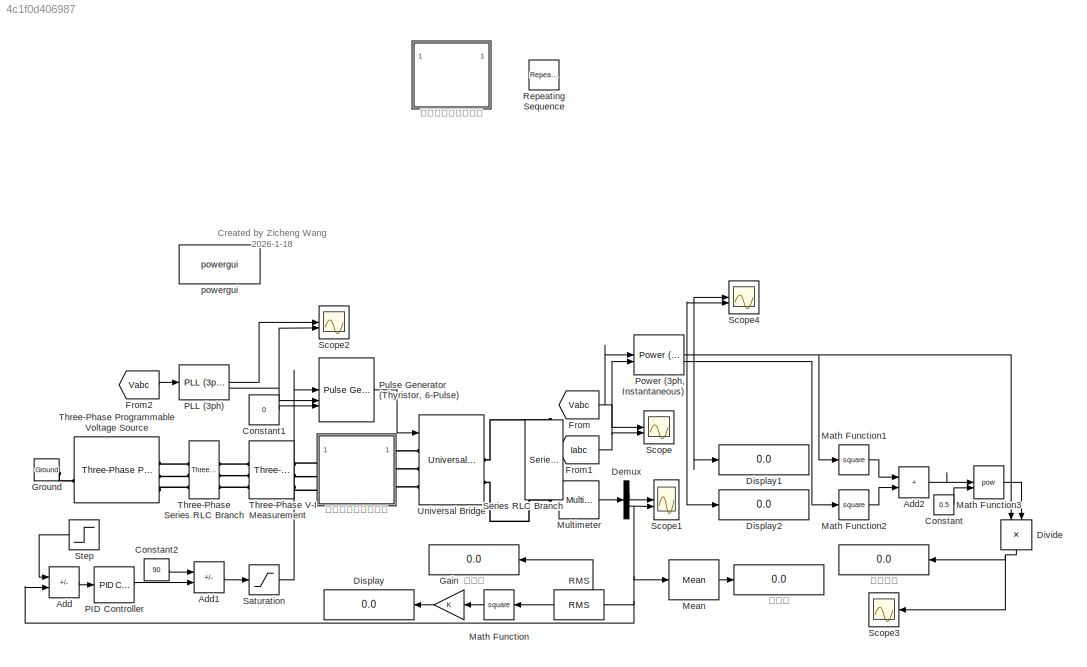
MODEL slx_4c1f0d406987
KIND model
CONFIG AbsTol = auto
CONFIG EnableMultiTasking = off
CONFIG FixedStep = auto
CONFIG MaxStep = 1e-4
CONFIG MinStep = auto
CONFIG RelTol = 1e-3
CONFIG SampleTimeConstraint = Unconstrained
CONFIG SolverName = VariableStepAuto
CONFIG StartTime = 0.0
CONFIG StopTime = 0.5
BLOCK [Sum] Add
  IconShape = rectangular
  Inputs = +-
BLOCK [Sum] Add1
  IconShape = rectangular
  Inputs = +-
BLOCK [Sum] Add2
  IconShape = rectangular
BLOCK [Constant] Constant
  Value = 0.5
BLOCK [Constant] Constant1
  Value = 0
BLOCK [Constant] Constant2
  Value = 90
BLOCK [Demux] Demux
  Outputs = 2
BLOCK [Display] Display
  Decimation = 1
  NameLocation = top
BLOCK [Display] Display1
  Decimation = 1
BLOCK [Display] Display2
  Decimation = 1
BLOCK [Product] Divide
  Inputs = */
  NameLocation = left
BLOCK [From] From
  GotoTag = Vabc
  TagVisibility = global
BLOCK [From] From1
  GotoTag = Iabc
  TagVisibility = global
BLOCK [From] From2
  GotoTag = Vabc
  TagVisibility = global
BLOCK [Gain] Gain
  NameLocation = top
BLOCK [Reference] Ground  REF=spsGroundLib/Ground
  LibrarySourceBlock = sps_lib/Utilities/Ground
  SourceBlock = spsGroundLib/Ground
  SourceType = Ground
BLOCK [Math] Math Function
  NameLocation = top
  Operator = square
BLOCK [Math] Math Function1
  Operator = square
BLOCK [Math] Math Function2
  Operator = square
BLOCK [Math] Math Function3
  Operator = pow
BLOCK [Reference] Mean  REF=spsMeanLib/Mean
  SourceBlock = spsMeanLib/Mean
  SourceType = Mean
BLOCK [Reference] Multimeter  REF=spsMultimeterLib/Multimeter
  LibrarySourceBlock = sps_lib/Sensors and Measurements/Multimeter
  SourceBlock = spsMultimeterLib/Multimeter
  SourceType = Multimeter
BLOCK [Reference] PID Controller  REF=slpidlib/PID Controller
  LibrarySourceBlock = simulink/Continuous/PID Controller
  SourceBlock = slpidlib/PID Controller
  SourceType = PID 1dof
BLOCK [Reference] PLL (3ph)  REF=spsPLL3phLib/PLL
(3ph)
  LibrarySourceBlock = sps_lib/Control/PLL\n(3ph)
  SourceBlock = spsPLL3phLib/PLL\n(3ph)
  SourceType = PLL (3ph)
BLOCK [Reference] Power (3ph, Instantaneous)  REF=spsPower3phInstantaneousLib/Power
(3ph, Instantaneous)
  LibrarySourceBlock = sps_lib/Sensors and Measurements/Power\n(3ph, Instantaneous)
  SourceBlock = spsPower3phInstantaneousLib/Power\n(3ph, Instantaneous)
  SourceType = Power (3ph, Instantaneous)
BLOCK [Reference] Pulse Generator (Thyristor, 6-Pulse)  REF=spsPulseGeneratorThyristor6PulseLib/Pulse Generator
(Thyristor, 6-Pulse)
  LibrarySourceBlock = sps_lib/Power Electronics/Power Electronics Control/Pulse Generator\n(Thyristor, 6-Pulse)
  SourceBlock = spsPulseGeneratorThyristor6PulseLib/Pulse Generator\n(Thyristor, 6-Pulse)
  SourceType = Pulse Generator (Thyristor)
BLOCK [Reference] RMS  REF=spsRMSLib/RMS
  LibrarySourceBlock = sps_lib/Sensors and Measurements/RMS
  NameLocation = top
  SourceBlock = spsRMSLib/RMS
  SourceType = RMS
BLOCK [Reference] Repeating Sequence  REF=simulink/Sources/Repeating
Sequence
  Commented = on
  SourceBlock = simulink/Sources/Repeating\nSequence
  SourceType = Repeating table
BLOCK [Saturate] Saturation
  LowerLimit = 0
  UpperLimit = 90
BLOCK [Scope] Scope
  ActiveDisplayString = 2
  ActiveDisplayYMaximum = 1
  ActiveDisplayYMinimum = -1
  DataLogging = on
  DataLoggingSaveFormat = Structure With Time
  Floating = off
  GraphicalSettings = {"Style":{"BackgroundColor":[0.12941176470588237,0.12941176470588237,0.12941176470588237],"AxesColor":[0.14901960784313725,0.14901960784313725,0.14901960784313725],"LabelsColor":[0.8509803921568627,0.8509803921568627,0.8509803921568627],"PreserveColors":false,"Visible":[true,true,true,true,true,true],"LineStyle":["-","-","-","-","-","-"],"LineWidth":[6,6,6,6,6,6],"BarWidth":[0.9,0.9,0.9,0.9,0.9,0....<+2758ch>
  LayoutDimensionsString = [2,1]
  MultipleDisplayCache = [{"MaxYLimMag":1,"MaxYLimReal":1,"MinYLimMag":0,"MinYLimReal":-1,"PlotAsMagnitudePhase":false,"ShowGrid":true,"ShowLegend":false,"Title":"%<SignalLabel>","YLabel":""},{"MaxYLimMag":1,"MaxYLimReal":1,"MinYLimMag":0,"MinYLimReal":-1,"PlotAsMagnitudePhase":false,"ShowGrid":true,"ShowLegend":false,"Title":"%<SignalLabel>","YLabel":""}]  <repeated x3 — deduplicated; at blocks: Scope, Scope2, Scope4>
  NumInputPorts = 2
  ScopeFrameLocation = window
  ShowTimeAxisLabel = on
  WasSavedAsWebScope = on
  WindowPosition = [1.000000,1.000000,1536.000000,841.000000,]
BLOCK [Scope] Scope1
  ActiveDisplayYMaximum = 59.934540956922731
  ActiveDisplayYMinimum = -51.707918022923707
  DataLogging = on
  DataLoggingSaveFormat = Structure With Time
  DataLoggingVariableName = ScopeData1
  Floating = off
  GraphicalSettings = {"Style":{"BackgroundColor":[0.12941176470588237,0.12941176470588237,0.12941176470588237],"AxesColor":[0.07058823529411765,0.07058823529411765,0.07058823529411765],"LabelsColor":[0.8509803921568627,0.8509803921568627,0.8509803921568627],"PreserveColors":false,"Visible":[true,true],"LineStyle":["-","-"],"LineWidth":[1.5,1.5],"BarWidth":[0.9,0.9],"LineColor":["auto","auto"],"LineFaceAlpha":[1,1],"Li...<+2612ch>
  LayoutDimensionsString = [2,1]
  MultipleDisplayCache = [{"MaxYLimMag":59.934540956922731,"MaxYLimReal":59.934540956922731,"MinYLimMag":0,"MinYLimReal":-51.707918022923707,"PlotAsMagnitudePhase":false,"ShowGrid":true,"ShowLegend":false,"Title":"%<SignalLabel>","YLabel":""},{"MaxYLimMag":116.62899158588183,"MaxYLimReal":116.62899158588183,"MinYLimMag":0,"MinYLimReal":-12.958776842875755,"PlotAsMagnitudePhase":false,"ShowGrid":true,"ShowLegend":false,"Ti...<+35ch>
  NumInputPorts = 2
  ScopeFrameLocation = window
  WasSavedAsWebScope = on
  WindowPosition = [1.000000,1.000000,1536.000000,841.000000,]
BLOCK [Scope] Scope2
  ActiveDisplayYMaximum = 1
  ActiveDisplayYMinimum = -1
  DataLoggingVariableName = ScopeData2
  Floating = off
  GraphicalSettings = {"Style":{"BackgroundColor":[0.12941176470588237,0.12941176470588237,0.12941176470588237],"AxesColor":[0.07058823529411765,0.07058823529411765,0.07058823529411765],"LabelsColor":[0.8509803921568627,0.8509803921568627,0.8509803921568627],"PreserveColors":false,"Visible":[true,true],"LineStyle":["-","-"],"LineWidth":[1.5,1.5],"BarWidth":[0.9,0.9],"LineColor":["auto","auto"],"LineFaceAlpha":[1,1],"Li...<+2270ch>
  LayoutDimensionsString = [2,1]
  NumInputPorts = 2
  ScopeFrameLocation = window
  WasSavedAsWebScope = on
  WindowPosition = [0.000000,12.000000,1536.000000,841.000000,]
BLOCK [Scope] Scope3
  ActiveDisplayYMaximum = 0.9967412923994573
  ActiveDisplayYMinimum = 0.98403716767059757
  DataLogging = on
  DataLoggingSaveFormat = Structure With Time
  DataLoggingVariableName = ScopeData3
  Floating = off
  GraphicalSettings = {"Style":{"BackgroundColor":[0.12941176470588237,0.12941176470588237,0.12941176470588237],"AxesColor":[0.14901960784313725,0.14901960784313725,0.14901960784313725],"LabelsColor":[0.8509803921568627,0.8509803921568627,0.8509803921568627],"PreserveColors":false,"Visible":[true],"LineStyle":["-"],"LineWidth":[1.5],"BarWidth":[0.9],"LineColor":["auto"],"LineFaceAlpha":[1],"LineEdgeAlpha":[1],"Marker":...<+2354ch>
  LayoutDimensionsString = [1,1]
  MultipleDisplayCache = [{"MaxYLimMag":0.9967412923994573,"MaxYLimReal":0.9967412923994573,"MinYLimMag":0.98403716767059757,"MinYLimReal":0.98403716767059757,"PlotAsMagnitudePhase":false,"ShowGrid":true,"ShowLegend":false,"Title":"%<SignalLabel>","YLabel":""}]
  NameLocation = top
  NumInputPorts = 1
  ScopeFrameLocation = window
  ShowTimeAxisLabel = on
  WasSavedAsWebScope = on
  WindowPosition = [1.000000,1.000000,1536.000000,841.000000,]
BLOCK [Scope] Scope4
  ActiveDisplayString = 2
  ActiveDisplayYMaximum = 1
  ActiveDisplayYMinimum = -1
  DataLogging = on
  DataLoggingSaveFormat = Structure With Time
  DataLoggingVariableName = ScopeData4
  Floating = off
  GraphicalSettings = {"Style":{"BackgroundColor":[0.12941176470588237,0.12941176470588237,0.12941176470588237],"AxesColor":[0.14901960784313725,0.14901960784313725,0.14901960784313725],"LabelsColor":[0.8509803921568627,0.8509803921568627,0.8509803921568627],"PreserveColors":false,"Visible":[true,true],"LineStyle":["-","-"],"LineWidth":[6,6],"BarWidth":[0.9,0.9],"LineColor":["auto","auto"],"LineFaceAlpha":[1,1],"LineEd...<+2300ch>
  LayoutDimensionsString = [2,1]
  NumInputPorts = 2
  ScopeFrameLocation = window
  ShowTimeAxisLabel = on
  WasSavedAsWebScope = on
  WindowPosition = [1.000000,1.000000,1536.000000,841.000000,]
BLOCK [Reference] Series RLC Branch  REF=spsSeriesRLCBranchLib/Series RLC Branch
  LibrarySourceBlock = sps_lib/Passives/Series RLC Branch
  NameLocation = right
  SourceBlock = spsSeriesRLCBranchLib/Series RLC Branch
  SourceType = Series RLC Branch
BLOCK [Step] Step
  After = 105
  NameLocation = top
  SampleTime = 0
  Time = 0.02
BLOCK [Reference] Three-Phase Programmable Voltage Source  REF=spsThreePhaseProgrammableVoltageSourceLib/Three-Phase
Programmable
Voltage Source
  LibrarySourceBlock = sps_lib/Sources/Three-Phase\nProgrammable\nVoltage Source
  SourceBlock = spsThreePhaseProgrammableVoltageSourceLib/Three-Phase\nProgrammable\nVoltage Source
  SourceType = Three-Phase Programmable Voltage Source
BLOCK [Reference] Three-Phase Series RLC Branch  REF=spsThreePhaseSeriesRLCBranchLib/Three-Phase
Series RLC Branch
  AttributesFormatString = \n
  LibrarySourceBlock = sps_lib/Passives/Three-Phase\nSeries RLC Branch
  SourceBlock = spsThreePhaseSeriesRLCBranchLib/Three-Phase\nSeries RLC Branch
  SourceType = Three-Phase Series RLC Branch
BLOCK [Reference] Three-Phase V-I Measurement  REF=spsThreePhaseVIMeasurementLib/Three-Phase
V-I Measurement
  LibrarySourceBlock = sps_lib/Sensors and Measurements/Three-Phase\nV-I Measurement
  SourceBlock = spsThreePhaseVIMeasurementLib/Three-Phase\nV-I Measurement
  SourceType = Three-Phase VI Measurement
BLOCK [Reference] Universal Bridge  REF=spsUniversalBridgeLib/Universal Bridge
  LibrarySourceBlock = sps_lib/Power Electronics/Universal Bridge
  SourceBlock = spsUniversalBridgeLib/Universal Bridge
  SourceType = Universal Bridge
BLOCK [Reference] powergui  REF=sps_lib/powergui
  LibrarySourceBlock = sps_lib/powergui
  Priority = 1
  SourceBlock = sps_lib/powergui
  SourceType = PSB option menu block
BLOCK [Display] 功率因数
  Decimation = 1
  Format = long
  NameLocation = top
BLOCK [Display] 平均值
  Decimation = 1
  Format = long
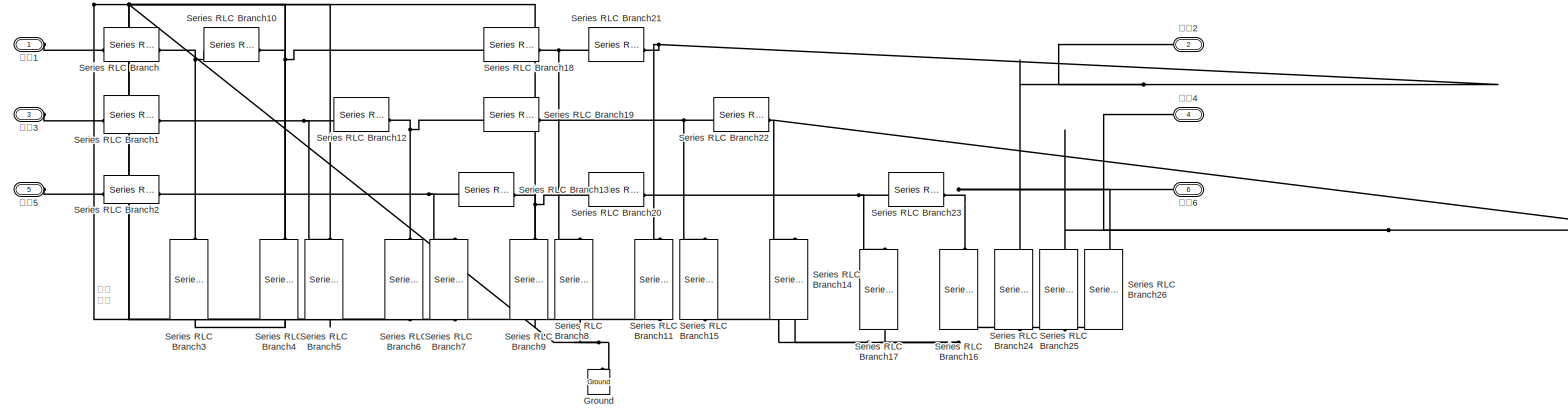
[diagram: 无功补偿与滤除谐波 - part 1/1, most of the canvas]
BLOCK [SubSystem] 无功补偿与滤除谐波
BLOCK [Reference] 无功补偿与滤除谐波/Ground  REF=spsGroundLib/Ground
  NameLocation = right
  SourceBlock = spsGroundLib/Ground
  SourceType = Ground
BLOCK [Reference] 无功补偿与滤除谐波/Series RLC Branch  REF=spsSeriesRLCBranchLib/Series RLC Branch
  SourceBlock = spsSeriesRLCBranchLib/Series RLC Branch
  SourceType = Series RLC Branch
BLOCK [Reference] 无功补偿与滤除谐波/Series RLC Branch1  REF=spsSeriesRLCBranchLib/Series RLC Branch
  SourceBlock = spsSeriesRLCBranchLib/Series RLC Branch
  SourceType = Series RLC Branch
BLOCK [Reference] 无功补偿与滤除谐波/Series RLC Branch10  REF=spsSeriesRLCBranchLib/Series RLC Branch
  SourceBlock = spsSeriesRLCBranchLib/Series RLC Branch
  SourceType = Series RLC Branch
BLOCK [Reference] 无功补偿与滤除谐波/Series RLC Branch11  REF=spsSeriesRLCBranchLib/Series RLC Branch
  NameLocation = left
  SourceBlock = spsSeriesRLCBranchLib/Series RLC Branch
  SourceType = Series RLC Branch
BLOCK [Reference] 无功补偿与滤除谐波/Series RLC Branch12  REF=spsSeriesRLCBranchLib/Series RLC Branch
  SourceBlock = spsSeriesRLCBranchLib/Series RLC Branch
  SourceType = Series RLC Branch
BLOCK [Reference] 无功补偿与滤除谐波/Series RLC Branch13  REF=spsSeriesRLCBranchLib/Series RLC Branch
  SourceBlock = spsSeriesRLCBranchLib/Series RLC Branch
  SourceType = Series RLC Branch
BLOCK [Reference] 无功补偿与滤除谐波/Series RLC Branch14  REF=spsSeriesRLCBranchLib/Series RLC Branch
  NameLocation = left
  SourceBlock = spsSeriesRLCBranchLib/Series RLC Branch
  SourceType = Series RLC Branch
BLOCK [Reference] 无功补偿与滤除谐波/Series RLC Branch15  REF=spsSeriesRLCBranchLib/Series RLC Branch
  NameLocation = left
  SourceBlock = spsSeriesRLCBranchLib/Series RLC Branch
  SourceType = Series RLC Branch
BLOCK [Reference] 无功补偿与滤除谐波/Series RLC Branch16  REF=spsSeriesRLCBranchLib/Series RLC Branch
  NameLocation = left
  SourceBlock = spsSeriesRLCBranchLib/Series RLC Branch
  SourceType = Series RLC Branch
BLOCK [Reference] 无功补偿与滤除谐波/Series RLC Branch17  REF=spsSeriesRLCBranchLib/Series RLC Branch
  NameLocation = left
  SourceBlock = spsSeriesRLCBranchLib/Series RLC Branch
  SourceType = Series RLC Branch
BLOCK [Reference] 无功补偿与滤除谐波/Series RLC Branch18  REF=spsSeriesRLCBranchLib/Series RLC Branch
  SourceBlock = spsSeriesRLCBranchLib/Series RLC Branch
  SourceType = Series RLC Branch
BLOCK [Reference] 无功补偿与滤除谐波/Series RLC Branch19  REF=spsSeriesRLCBranchLib/Series RLC Branch
  SourceBlock = spsSeriesRLCBranchLib/Series RLC Branch
  SourceType = Series RLC Branch
BLOCK [Reference] 无功补偿与滤除谐波/Series RLC Branch2  REF=spsSeriesRLCBranchLib/Series RLC Branch
  SourceBlock = spsSeriesRLCBranchLib/Series RLC Branch
  SourceType = Series RLC Branch
BLOCK [Reference] 无功补偿与滤除谐波/Series RLC Branch20  REF=spsSeriesRLCBranchLib/Series RLC Branch
  SourceBlock = spsSeriesRLCBranchLib/Series RLC Branch
  SourceType = Series RLC Branch
BLOCK [Reference] 无功补偿与滤除谐波/Series RLC Branch21  REF=spsSeriesRLCBranchLib/Series RLC Branch
  SourceBlock = spsSeriesRLCBranchLib/Series RLC Branch
  SourceType = Series RLC Branch
BLOCK [Reference] 无功补偿与滤除谐波/Series RLC Branch22  REF=spsSeriesRLCBranchLib/Series RLC Branch
  SourceBlock = spsSeriesRLCBranchLib/Series RLC Branch
  SourceType = Series RLC Branch
BLOCK [Reference] 无功补偿与滤除谐波/Series RLC Branch23  REF=spsSeriesRLCBranchLib/Series RLC Branch
  SourceBlock = spsSeriesRLCBranchLib/Series RLC Branch
  SourceType = Series RLC Branch
BLOCK [Reference] 无功补偿与滤除谐波/Series RLC Branch24  REF=spsSeriesRLCBranchLib/Series RLC Branch
  NameLocation = left
  SourceBlock = spsSeriesRLCBranchLib/Series RLC Branch
  SourceType = Series RLC Branch
BLOCK [Reference] 无功补偿与滤除谐波/Series RLC Branch25  REF=spsSeriesRLCBranchLib/Series RLC Branch
  NameLocation = left
  SourceBlock = spsSeriesRLCBranchLib/Series RLC Branch
  SourceType = Series RLC Branch
BLOCK [Reference] 无功补偿与滤除谐波/Series RLC Branch26  REF=spsSeriesRLCBranchLib/Series RLC Branch
  NameLocation = left
  SourceBlock = spsSeriesRLCBranchLib/Series RLC Branch
  SourceType = Series RLC Branch
BLOCK [Reference] 无功补偿与滤除谐波/Series RLC Branch3  REF=spsSeriesRLCBranchLib/Series RLC Branch
  NameLocation = left
  SourceBlock = spsSeriesRLCBranchLib/Series RLC Branch
  SourceType = Series RLC Branch
BLOCK [Reference] 无功补偿与滤除谐波/Series RLC Branch4  REF=spsSeriesRLCBranchLib/Series RLC Branch
  NameLocation = left
  SourceBlock = spsSeriesRLCBranchLib/Series RLC Branch
  SourceType = Series RLC Branch
BLOCK [Reference] 无功补偿与滤除谐波/Series RLC Branch5  REF=spsSeriesRLCBranchLib/Series RLC Branch
  NameLocation = left
  SourceBlock = spsSeriesRLCBranchLib/Series RLC Branch
  SourceType = Series RLC Branch
BLOCK [Reference] 无功补偿与滤除谐波/Series RLC Branch6  REF=spsSeriesRLCBranchLib/Series RLC Branch
  NameLocation = left
  SourceBlock = spsSeriesRLCBranchLib/Series RLC Branch
  SourceType = Series RLC Branch
BLOCK [Reference] 无功补偿与滤除谐波/Series RLC Branch7  REF=spsSeriesRLCBranchLib/Series RLC Branch
  NameLocation = left
  SourceBlock = spsSeriesRLCBranchLib/Series RLC Branch
  SourceType = Series RLC Branch
BLOCK [Reference] 无功补偿与滤除谐波/Series RLC Branch8  REF=spsSeriesRLCBranchLib/Series RLC Branch
  NameLocation = left
  SourceBlock = spsSeriesRLCBranchLib/Series RLC Branch
  SourceType = Series RLC Branch
BLOCK [Reference] 无功补偿与滤除谐波/Series RLC Branch9  REF=spsSeriesRLCBranchLib/Series RLC Branch
  NameLocation = left
  SourceBlock = spsSeriesRLCBranchLib/Series RLC Branch
  SourceType = Series RLC Branch
BLOCK [PMIOPort] 无功补偿与滤除谐波/接口1
  Side = Left
BLOCK [PMIOPort] 无功补偿与滤除谐波/接口2
  Port = 2
  Side = Right
BLOCK [PMIOPort] 无功补偿与滤除谐波/接口3
  Port = 3
  Side = Left
BLOCK [PMIOPort] 无功补偿与滤除谐波/接口4
  Port = 4
  Side = Right
BLOCK [PMIOPort] 无功补偿与滤除谐波/接口5
  Port = 5
  Side = Left
BLOCK [PMIOPort] 无功补偿与滤除谐波/接口6
  Port = 6
  Side = Right
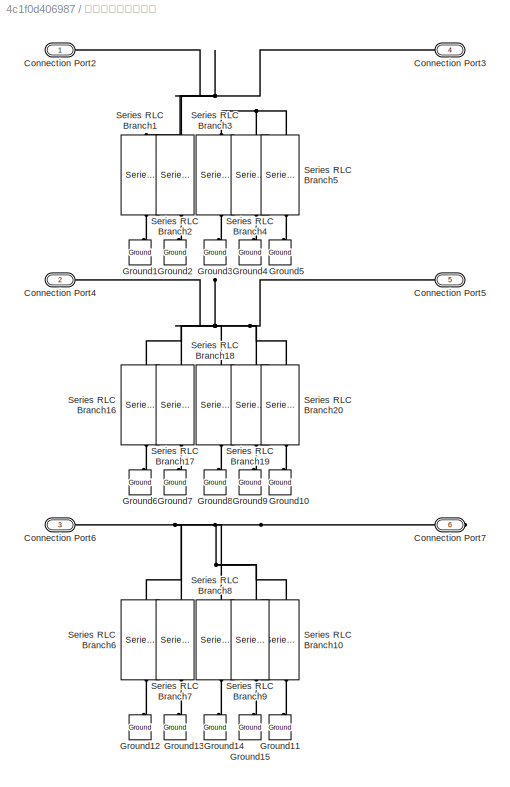
BLOCK [SubSystem] 无功补偿与谐波滤除
  Commented = on
BLOCK [PMIOPort] 无功补偿与谐波滤除/Connection Port2
  Side = Left
BLOCK [PMIOPort] 无功补偿与谐波滤除/Connection Port3
  NameLocation = top
  Port = 4
  Side = Right
BLOCK [PMIOPort] 无功补偿与谐波滤除/Connection Port4
  Port = 2
  Side = Left
BLOCK [PMIOPort] 无功补偿与谐波滤除/Connection Port5
  NameLocation = top
  Port = 5
  Side = Right
BLOCK [PMIOPort] 无功补偿与谐波滤除/Connection Port6
  Port = 3
  Side = Left
BLOCK [PMIOPort] 无功补偿与谐波滤除/Connection Port7
  NameLocation = top
  Port = 6
  Side = Right
BLOCK [Reference] 无功补偿与谐波滤除/Ground1  REF=spsGroundLib/Ground
  LibrarySourceBlock = sps_lib/Utilities/Ground
  NameLocation = right
  SourceBlock = spsGroundLib/Ground
  SourceType = Ground
BLOCK [Reference] 无功补偿与谐波滤除/Ground10  REF=spsGroundLib/Ground
  LibrarySourceBlock = sps_lib/Utilities/Ground
  NameLocation = right
  SourceBlock = spsGroundLib/Ground
  SourceType = Ground
BLOCK [Reference] 无功补偿与谐波滤除/Ground11  REF=spsGroundLib/Ground
  LibrarySourceBlock = sps_lib/Utilities/Ground
  NameLocation = right
  SourceBlock = spsGroundLib/Ground
  SourceType = Ground
BLOCK [Reference] 无功补偿与谐波滤除/Ground12  REF=spsGroundLib/Ground
  LibrarySourceBlock = sps_lib/Utilities/Ground
  NameLocation = right
  SourceBlock = spsGroundLib/Ground
  SourceType = Ground
BLOCK [Reference] 无功补偿与谐波滤除/Ground13  REF=spsGroundLib/Ground
  LibrarySourceBlock = sps_lib/Utilities/Ground
  NameLocation = right
  SourceBlock = spsGroundLib/Ground
  SourceType = Ground
BLOCK [Reference] 无功补偿与谐波滤除/Ground14  REF=spsGroundLib/Ground
  LibrarySourceBlock = sps_lib/Utilities/Ground
  NameLocation = right
  SourceBlock = spsGroundLib/Ground
  SourceType = Ground
BLOCK [Reference] 无功补偿与谐波滤除/Ground15  REF=spsGroundLib/Ground
  LibrarySourceBlock = sps_lib/Utilities/Ground
  NameLocation = right
  SourceBlock = spsGroundLib/Ground
  SourceType = Ground
BLOCK [Reference] 无功补偿与谐波滤除/Ground2  REF=spsGroundLib/Ground
  LibrarySourceBlock = sps_lib/Utilities/Ground
  NameLocation = right
  SourceBlock = spsGroundLib/Ground
  SourceType = Ground
BLOCK [Reference] 无功补偿与谐波滤除/Ground3  REF=spsGroundLib/Ground
  LibrarySourceBlock = sps_lib/Utilities/Ground
  NameLocation = right
  SourceBlock = spsGroundLib/Ground
  SourceType = Ground
BLOCK [Reference] 无功补偿与谐波滤除/Ground4  REF=spsGroundLib/Ground
  LibrarySourceBlock = sps_lib/Utilities/Ground
  NameLocation = right
  SourceBlock = spsGroundLib/Ground
  SourceType = Ground
BLOCK [Reference] 无功补偿与谐波滤除/Ground5  REF=spsGroundLib/Ground
  LibrarySourceBlock = sps_lib/Utilities/Ground
  NameLocation = right
  SourceBlock = spsGroundLib/Ground
  SourceType = Ground
BLOCK [Reference] 无功补偿与谐波滤除/Ground6  REF=spsGroundLib/Ground
  LibrarySourceBlock = sps_lib/Utilities/Ground
  NameLocation = right
  SourceBlock = spsGroundLib/Ground
  SourceType = Ground
BLOCK [Reference] 无功补偿与谐波滤除/Ground7  REF=spsGroundLib/Ground
  LibrarySourceBlock = sps_lib/Utilities/Ground
  NameLocation = right
  SourceBlock = spsGroundLib/Ground
  SourceType = Ground
BLOCK [Reference] 无功补偿与谐波滤除/Ground8  REF=spsGroundLib/Ground
  LibrarySourceBlock = sps_lib/Utilities/Ground
  NameLocation = right
  SourceBlock = spsGroundLib/Ground
  SourceType = Ground
BLOCK [Reference] 无功补偿与谐波滤除/Ground9  REF=spsGroundLib/Ground
  LibrarySourceBlock = sps_lib/Utilities/Ground
  NameLocation = right
  SourceBlock = spsGroundLib/Ground
  SourceType = Ground
BLOCK [Reference] 无功补偿与谐波滤除/Series RLC Branch1  REF=spsSeriesRLCBranchLib/Series RLC Branch
  LibrarySourceBlock = sps_lib/Passives/Series RLC Branch
  NameLocation = left
  SourceBlock = spsSeriesRLCBranchLib/Series RLC Branch
  SourceType = Series RLC Branch
BLOCK [Reference] 无功补偿与谐波滤除/Series RLC Branch10  REF=spsSeriesRLCBranchLib/Series RLC Branch
  LibrarySourceBlock = sps_lib/Passives/Series RLC Branch
  NameLocation = left
  SourceBlock = spsSeriesRLCBranchLib/Series RLC Branch
  SourceType = Series RLC Branch
BLOCK [Reference] 无功补偿与谐波滤除/Series RLC Branch16  REF=spsSeriesRLCBranchLib/Series RLC Branch
  LibrarySourceBlock = sps_lib/Passives/Series RLC Branch
  NameLocation = left
  SourceBlock = spsSeriesRLCBranchLib/Series RLC Branch
  SourceType = Series RLC Branch
BLOCK [Reference] 无功补偿与谐波滤除/Series RLC Branch17  REF=spsSeriesRLCBranchLib/Series RLC Branch
  LibrarySourceBlock = sps_lib/Passives/Series RLC Branch
  NameLocation = left
  SourceBlock = spsSeriesRLCBranchLib/Series RLC Branch
  SourceType = Series RLC Branch
BLOCK [Reference] 无功补偿与谐波滤除/Series RLC Branch18  REF=spsSeriesRLCBranchLib/Series RLC Branch
  LibrarySourceBlock = sps_lib/Passives/Series RLC Branch
  NameLocation = left
  SourceBlock = spsSeriesRLCBranchLib/Series RLC Branch
  SourceType = Series RLC Branch
BLOCK [Reference] 无功补偿与谐波滤除/Series RLC Branch19  REF=spsSeriesRLCBranchLib/Series RLC Branch
  LibrarySourceBlock = sps_lib/Passives/Series RLC Branch
  NameLocation = left
  SourceBlock = spsSeriesRLCBranchLib/Series RLC Branch
  SourceType = Series RLC Branch
BLOCK [Reference] 无功补偿与谐波滤除/Series RLC Branch2  REF=spsSeriesRLCBranchLib/Series RLC Branch
  LibrarySourceBlock = sps_lib/Passives/Series RLC Branch
  NameLocation = left
  SourceBlock = spsSeriesRLCBranchLib/Series RLC Branch
  SourceType = Series RLC Branch
BLOCK [Reference] 无功补偿与谐波滤除/Series RLC Branch20  REF=spsSeriesRLCBranchLib/Series RLC Branch
  LibrarySourceBlock = sps_lib/Passives/Series RLC Branch
  NameLocation = left
  SourceBlock = spsSeriesRLCBranchLib/Series RLC Branch
  SourceType = Series RLC Branch
BLOCK [Reference] 无功补偿与谐波滤除/Series RLC Branch3  REF=spsSeriesRLCBranchLib/Series RLC Branch
  LibrarySourceBlock = sps_lib/Passives/Series RLC Branch
  NameLocation = left
  SourceBlock = spsSeriesRLCBranchLib/Series RLC Branch
  SourceType = Series RLC Branch
BLOCK [Reference] 无功补偿与谐波滤除/Series RLC Branch4  REF=spsSeriesRLCBranchLib/Series RLC Branch
  LibrarySourceBlock = sps_lib/Passives/Series RLC Branch
  NameLocation = left
  SourceBlock = spsSeriesRLCBranchLib/Series RLC Branch
  SourceType = Series RLC Branch
BLOCK [Reference] 无功补偿与谐波滤除/Series RLC Branch5  REF=spsSeriesRLCBranchLib/Series RLC Branch
  LibrarySourceBlock = sps_lib/Passives/Series RLC Branch
  NameLocation = left
  SourceBlock = spsSeriesRLCBranchLib/Series RLC Branch
  SourceType = Series RLC Branch
BLOCK [Reference] 无功补偿与谐波滤除/Series RLC Branch6  REF=spsSeriesRLCBranchLib/Series RLC Branch
  LibrarySourceBlock = sps_lib/Passives/Series RLC Branch
  NameLocation = left
  SourceBlock = spsSeriesRLCBranchLib/Series RLC Branch
  SourceType = Series RLC Branch
BLOCK [Reference] 无功补偿与谐波滤除/Series RLC Branch7  REF=spsSeriesRLCBranchLib/Series RLC Branch
  LibrarySourceBlock = sps_lib/Passives/Series RLC Branch
  NameLocation = left
  SourceBlock = spsSeriesRLCBranchLib/Series RLC Branch
  SourceType = Series RLC Branch
BLOCK [Reference] 无功补偿与谐波滤除/Series RLC Branch8  REF=spsSeriesRLCBranchLib/Series RLC Branch
  LibrarySourceBlock = sps_lib/Passives/Series RLC Branch
  NameLocation = left
  SourceBlock = spsSeriesRLCBranchLib/Series RLC Branch
  SourceType = Series RLC Branch
BLOCK [Reference] 无功补偿与谐波滤除/Series RLC Branch9  REF=spsSeriesRLCBranchLib/Series RLC Branch
  LibrarySourceBlock = sps_lib/Passives/Series RLC Branch
  NameLocation = left
  SourceBlock = spsSeriesRLCBranchLib/Series RLC Branch
  SourceType = Series RLC Branch
BLOCK [Display] 有效值
  Decimation = 1
  Format = long
  NameLocation = top
ANNOTATION (root): Created by Zicheng Wang 2026-1-18
ANNOTATION 无功补偿与滤除谐波: 滤波 装置
LINE Add1:1 -> Saturation:1
LINE Add2:1 -> Math Function3:1
LINE Add:1 -> PID Controller:1
LINE Constant1:1 -> Pulse Generator (Thyristor, 6-Pulse):3
LINE Constant2:1 -> Add1:1
LINE Constant:1 -> Math Function3:2
LINE Demux:1 -> Scope1:1
NET Demux:2 -> Add:2, Mean:1, RMS:1, Scope1:2
NET Divide:1 -> Scope3:1, 功率因数:1
NET From1:1 -> Power (3ph, Instantaneous):2, Scope:2
LINE From2:1 -> PLL (3ph):1
NET From:1 -> Power (3ph, Instantaneous):1, Scope:1
LINE Gain:1 -> Display:1
LINE Math Function1:1 -> Add2:1
LINE Math Function2:1 -> Add2:2
LINE Math Function3:1 -> Divide:2
LINE Math Function:1 -> Gain:1
LINE Mean:1 -> 平均值:1
LINE Multimeter:1 -> Demux:1
LINE PID Controller:1 -> Add1:2
LINE PLL (3ph):1 -> Scope2:1
NET PLL (3ph):2 -> Pulse Generator (Thyristor, 6-Pulse):2, Scope2:2
NET Power (3ph, Instantaneous):1 -> Display1:1, Divide:1, Math Function1:1, Scope4:1
NET Power (3ph, Instantaneous):2 -> Display2:1, Math Function2:1, Scope4:2
LINE Pulse Generator (Thyristor, 6-Pulse):1 -> Universal Bridge:1
NET RMS:1 -> Math Function:1, 有效值:1
LINE Saturation:1 -> Pulse Generator (Thyristor, 6-Pulse):1
LINE Step:1 -> Add:1
PLINE Ground:LConn1 -- Three-Phase Programmable Voltage Source:LConn1
PLINE Series RLC Branch:LConn1 -- Universal Bridge:RConn1
PLINE Series RLC Branch:RConn1 -- Universal Bridge:RConn2
PLINE Three-Phase Programmable Voltage Source:RConn1 -- Three-Phase Series RLC Branch:LConn1
PLINE Three-Phase Programmable Voltage Source:RConn2 -- Three-Phase Series RLC Branch:LConn2
PLINE Three-Phase Programmable Voltage Source:RConn3 -- Three-Phase Series RLC Branch:LConn3
PLINE Three-Phase Series RLC Branch:RConn1 -- Three-Phase V-I Measurement:LConn1
PLINE Three-Phase Series RLC Branch:RConn2 -- Three-Phase V-I Measurement:LConn2
PLINE Three-Phase Series RLC Branch:RConn3 -- Three-Phase V-I Measurement:LConn3
PLINE Three-Phase V-I Measurement:RConn1 -- 无功补偿与滤除谐波:LConn1
PLINE Three-Phase V-I Measurement:RConn2 -- 无功补偿与滤除谐波:LConn2
PLINE Three-Phase V-I Measurement:RConn3 -- 无功补偿与滤除谐波:LConn3
PLINE Universal Bridge:LConn1 -- 无功补偿与滤除谐波:RConn1
PLINE Universal Bridge:LConn2 -- 无功补偿与滤除谐波:RConn2
PLINE Universal Bridge:LConn3 -- 无功补偿与滤除谐波:RConn3
PNET net1: 无功补偿与滤除谐波/Ground:LConn1 -- 无功补偿与滤除谐波/Series RLC Branch11:RConn1 -- 无功补偿与滤除谐波/Series RLC Branch14:RConn1 -- 无功补偿与滤除谐波/Series RLC Branch15:RConn1 -- 无功补偿与滤除谐波/Series RLC Branch16:RConn1 -- 无功补偿与滤除谐波/Series RLC Branch17:RConn1 -- 无功补偿与滤除谐波/Series RLC Branch24:RConn1 -- 无功补偿与滤除谐波/Series RLC Branch25:RConn1 -- 无功补偿与滤除谐波/Series RLC Branch26:RConn1 -- 无功补偿与滤除谐波/Series RLC Branch3:RConn1 -- 无功补偿与滤除谐波/Series RLC Branch4:RConn1 -- 无功补偿与滤除谐波/Series RLC Branch5:RConn1 -- 无功补偿与滤除谐波/Series RLC Branch6:RConn1 -- 无功补偿与滤除谐波/Series RLC Branch7:RConn1 -- 无功补偿与滤除谐波/Series RLC Branch8:RConn1 -- 无功补偿与滤除谐波/Series RLC Branch9:RConn1
PNET net2: 无功补偿与滤除谐波/Series RLC Branch10:LConn1 -- 无功补偿与滤除谐波/Series RLC Branch3:LConn1 -- 无功补偿与滤除谐波/Series RLC Branch:RConn1
PNET net3: 无功补偿与滤除谐波/Series RLC Branch10:RConn1 -- 无功补偿与滤除谐波/Series RLC Branch18:LConn1 -- 无功补偿与滤除谐波/Series RLC Branch4:LConn1
PNET net4: 无功补偿与滤除谐波/Series RLC Branch11:LConn1 -- 无功补偿与滤除谐波/Series RLC Branch21:RConn1 -- 无功补偿与滤除谐波/Series RLC Branch24:LConn1 -- 无功补偿与滤除谐波/接口2:RConn1
PNET net5: 无功补偿与滤除谐波/Series RLC Branch12:LConn1 -- 无功补偿与滤除谐波/Series RLC Branch1:RConn1 -- 无功补偿与滤除谐波/Series RLC Branch5:LConn1
PNET net6: 无功补偿与滤除谐波/Series RLC Branch12:RConn1 -- 无功补偿与滤除谐波/Series RLC Branch19:LConn1 -- 无功补偿与滤除谐波/Series RLC Branch6:LConn1
PNET net7: 无功补偿与滤除谐波/Series RLC Branch13:LConn1 -- 无功补偿与滤除谐波/Series RLC Branch2:RConn1 -- 无功补偿与滤除谐波/Series RLC Branch7:LConn1
PNET net8: 无功补偿与滤除谐波/Series RLC Branch13:RConn1 -- 无功补偿与滤除谐波/Series RLC Branch20:LConn1 -- 无功补偿与滤除谐波/Series RLC Branch9:LConn1
PNET net9: 无功补偿与滤除谐波/Series RLC Branch14:LConn1 -- 无功补偿与滤除谐波/Series RLC Branch22:RConn1 -- 无功补偿与滤除谐波/Series RLC Branch25:LConn1 -- 无功补偿与滤除谐波/接口4:RConn1
PNET net10: 无功补偿与滤除谐波/Series RLC Branch15:LConn1 -- 无功补偿与滤除谐波/Series RLC Branch19:RConn1 -- 无功补偿与滤除谐波/Series RLC Branch22:LConn1
PNET net11: 无功补偿与滤除谐波/Series RLC Branch16:LConn1 -- 无功补偿与滤除谐波/Series RLC Branch23:RConn1 -- 无功补偿与滤除谐波/Series RLC Branch26:LConn1 -- 无功补偿与滤除谐波/接口6:RConn1
PNET net12: 无功补偿与滤除谐波/Series RLC Branch17:LConn1 -- 无功补偿与滤除谐波/Series RLC Branch20:RConn1 -- 无功补偿与滤除谐波/Series RLC Branch23:LConn1
PNET net13: 无功补偿与滤除谐波/Series RLC Branch18:RConn1 -- 无功补偿与滤除谐波/Series RLC Branch21:LConn1 -- 无功补偿与滤除谐波/Series RLC Branch8:LConn1
PLINE 无功补偿与滤除谐波/Series RLC Branch1:LConn1 -- 无功补偿与滤除谐波/接口3:RConn1
PLINE 无功补偿与滤除谐波/Series RLC Branch2:LConn1 -- 无功补偿与滤除谐波/接口5:RConn1
PLINE 无功补偿与滤除谐波/Series RLC Branch:LConn1 -- 无功补偿与滤除谐波/接口1:RConn1
PNET net14: 无功补偿与谐波滤除/Connection Port2:RConn1 -- 无功补偿与谐波滤除/Connection Port3:RConn1 -- 无功补偿与谐波滤除/Series RLC Branch1:LConn1 -- 无功补偿与谐波滤除/Series RLC Branch2:LConn1 -- 无功补偿与谐波滤除/Series RLC Branch3:LConn1 -- 无功补偿与谐波滤除/Series RLC Branch4:LConn1 -- 无功补偿与谐波滤除/Series RLC Branch5:LConn1
PNET net15: 无功补偿与谐波滤除/Connection Port4:RConn1 -- 无功补偿与谐波滤除/Connection Port5:RConn1 -- 无功补偿与谐波滤除/Series RLC Branch16:LConn1 -- 无功补偿与谐波滤除/Series RLC Branch17:LConn1 -- 无功补偿与谐波滤除/Series RLC Branch18:LConn1 -- 无功补偿与谐波滤除/Series RLC Branch19:LConn1 -- 无功补偿与谐波滤除/Series RLC Branch20:LConn1
PNET net16: 无功补偿与谐波滤除/Connection Port6:RConn1 -- 无功补偿与谐波滤除/Connection Port7:RConn1 -- 无功补偿与谐波滤除/Series RLC Branch10:LConn1 -- 无功补偿与谐波滤除/Series RLC Branch6:LConn1 -- 无功补偿与谐波滤除/Series RLC Branch7:LConn1 -- 无功补偿与谐波滤除/Series RLC Branch8:LConn1 -- 无功补偿与谐波滤除/Series RLC Branch9:LConn1
PLINE 无功补偿与谐波滤除/Ground10:LConn1 -- 无功补偿与谐波滤除/Series RLC Branch20:RConn1
PLINE 无功补偿与谐波滤除/Ground11:LConn1 -- 无功补偿与谐波滤除/Series RLC Branch10:RConn1
PLINE 无功补偿与谐波滤除/Ground12:LConn1 -- 无功补偿与谐波滤除/Series RLC Branch6:RConn1
PLINE 无功补偿与谐波滤除/Ground13:LConn1 -- 无功补偿与谐波滤除/Series RLC Branch7:RConn1
PLINE 无功补偿与谐波滤除/Ground14:LConn1 -- 无功补偿与谐波滤除/Series RLC Branch8:RConn1
PLINE 无功补偿与谐波滤除/Ground15:LConn1 -- 无功补偿与谐波滤除/Series RLC Branch9:RConn1
PLINE 无功补偿与谐波滤除/Ground1:LConn1 -- 无功补偿与谐波滤除/Series RLC Branch1:RConn1
PLINE 无功补偿与谐波滤除/Ground2:LConn1 -- 无功补偿与谐波滤除/Series RLC Branch2:RConn1
PLINE 无功补偿与谐波滤除/Ground3:LConn1 -- 无功补偿与谐波滤除/Series RLC Branch3:RConn1
PLINE 无功补偿与谐波滤除/Ground4:LConn1 -- 无功补偿与谐波滤除/Series RLC Branch4:RConn1
PLINE 无功补偿与谐波滤除/Ground5:LConn1 -- 无功补偿与谐波滤除/Series RLC Branch5:RConn1
PLINE 无功补偿与谐波滤除/Ground6:LConn1 -- 无功补偿与谐波滤除/Series RLC Branch16:RConn1
PLINE 无功补偿与谐波滤除/Ground7:LConn1 -- 无功补偿与谐波滤除/Series RLC Branch17:RConn1
PLINE 无功补偿与谐波滤除/Ground8:LConn1 -- 无功补偿与谐波滤除/Series RLC Branch18:RConn1
PLINE 无功补偿与谐波滤除/Ground9:LConn1 -- 无功补偿与谐波滤除/Series RLC Branch19:RConn1
note: NET lines group one-source signal fan-out (src -> all destinations, sorted); 1:1 wires keep LINE; PNET lines group multi-terminal physical nets as a canonical sorted terminal list (undirected conserving connections); 2-terminal nets keep the pairwise PLINE form
